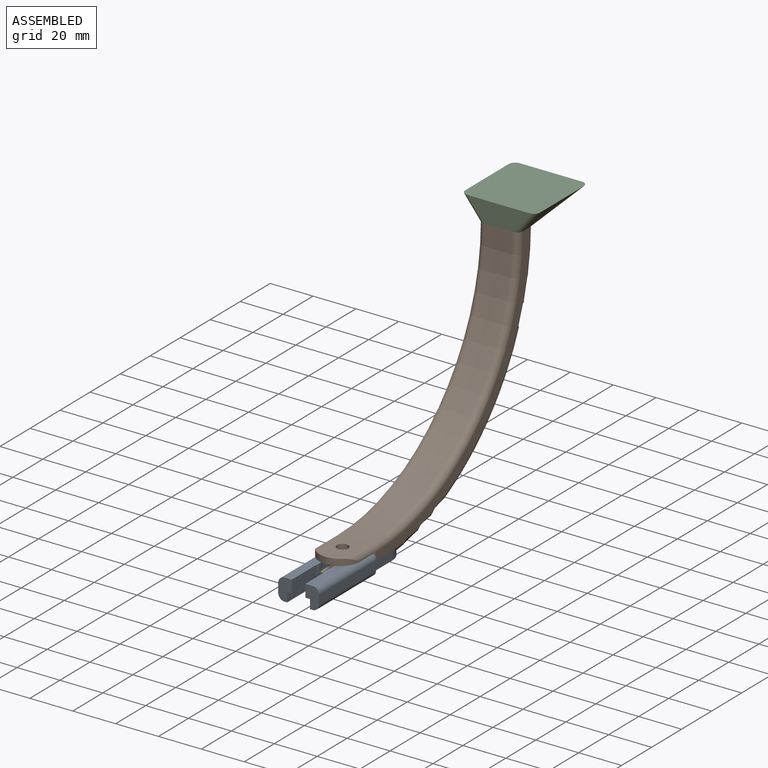
[diagram: assembled view]
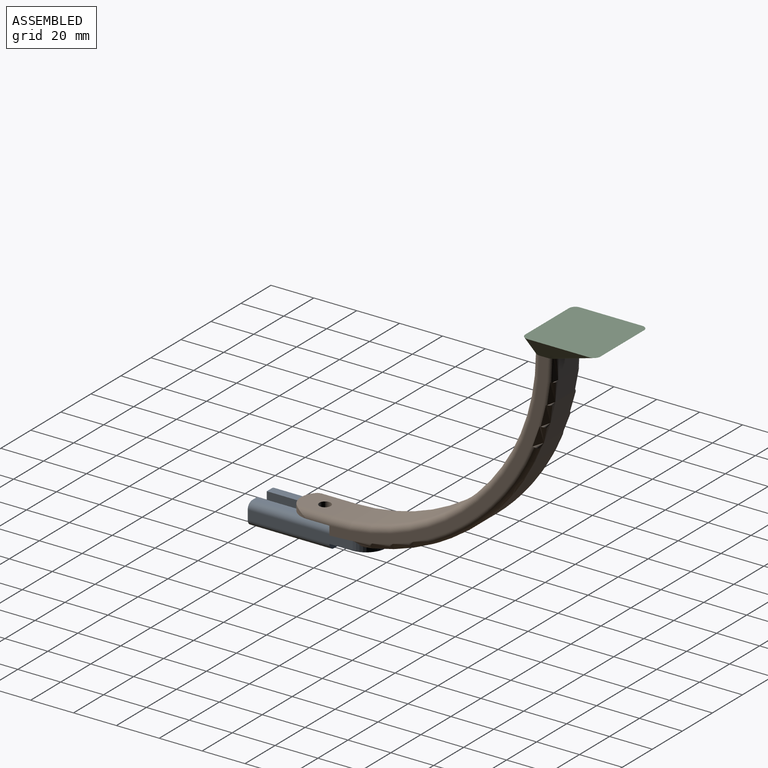
[diagram: assembled view, second angle]
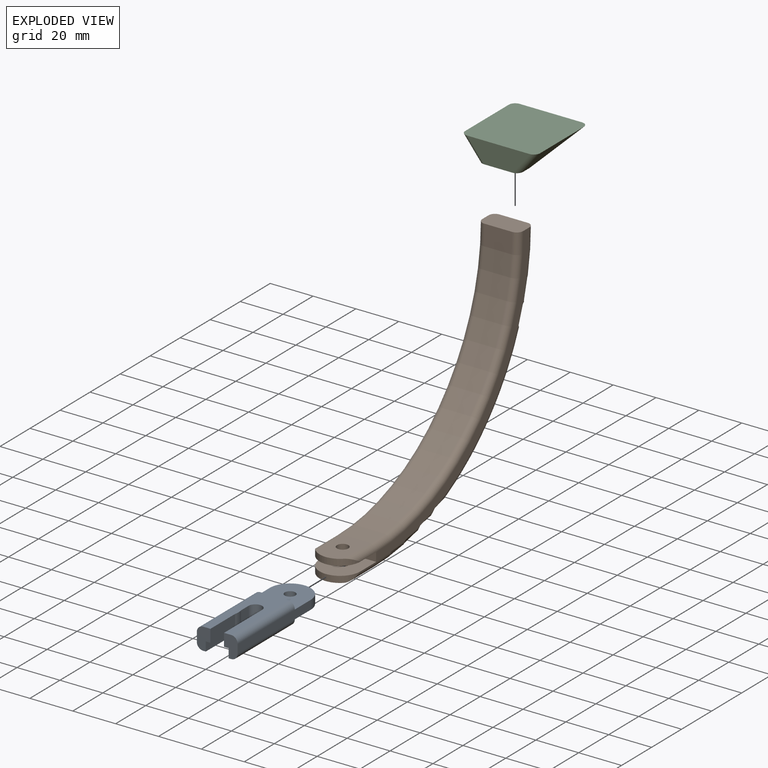
[diagram: exploded view]
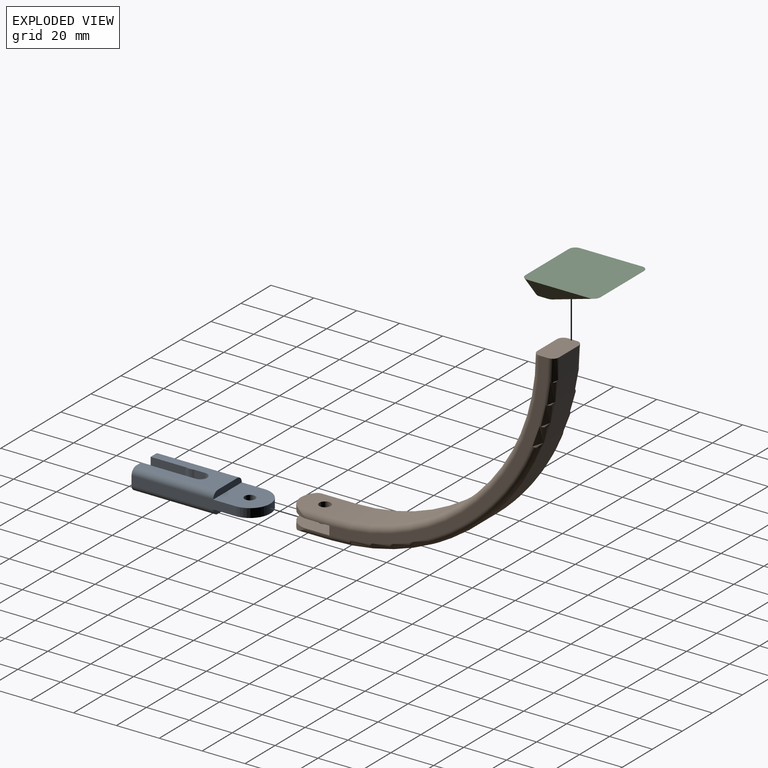
[diagram: exploded view, second angle]
ASSEMBLY  parts=3 mates=2
PART A: 27 faces, bbox 19.1x58.1x10.2 mm
  f0: plane 49.03x4.16mm, normal (-1,0,0), area 204mm2, adj f1,f7,f9,f10,f24,f25
  f1: plane 20x19.05mm, normal (0,0,-1), area 322.5mm2, adj f0,f2,f14,f25,f26
  f2: plane 49.03x4.16mm, normal (1,0,0), area 204mm2, adj f1,f8,f12,f13,f24,f25
  f3: plane 19.05x3mm, normal (0,1,0), area 53.3mm2, adj f6,f8,f9,f24
  f4: plane 16.4x5.89mm, normal (1,0,0), area 96.6mm2, adj f6,f7,f19,f23
  f5: plane 4.27x2.16mm, normal (0,-1,0), area 9.2mm2, adj f11,f19,f20,f22
  f6: plane 38.1x13.05mm, normal (0,0,1), area 320.8mm2, adj f3,f4,f7,f8,f9,f13,f17,f18
  f7: plane 10.16x6.35mm, normal (0,-1,0), area 51.4mm2, adj f0,f4,f6,f9,f10,f11,f19,f20
  f8: cylinder r=3mm len=38.1mm, axis (0,1,0), area 179.5mm2, adj f2,f3,f6,f13
  f9: cylinder r=3mm len=38.1mm, axis (0,1,0), area 179.5mm2, adj f0,f3,f6,f7
  f10: cylinder r=3mm len=38.1mm, axis (0,1,0), area 179.5mm2, adj f0,f7,f11,f14
  f11: plane 38.1x13.05mm, normal (0,0,-1), area 210.4mm2, adj f5,f7,f10,f12,f13,f14,f15,f20
  f12: cylinder r=3mm len=38.1mm, axis (0,1,0), area 179.5mm2, adj f2,f11,f13,f14
  f13: plane 10.16x6.35mm, normal (0,-1,0), area 51.4mm2, adj f2,f6,f8,f11,f12,f15,f16,f17
  f14: plane 19.05x3mm, normal (0,1,0), area 53.3mm2, adj f1,f10,f11,f12
  f15: plane 25.4x4.27mm, normal (-1,0,0), area 108.4mm2, adj f11,f13,f16,f21
  f16: plane 25.4x2.16mm, normal (0,0,-1), area 54.8mm2, adj f13,f15,f17,f21
  f17: plane 25.4x5.89mm, normal (-1,0,0), area 149.7mm2, adj f6,f13,f16,f22
  f18: plane 5.89x5mm, normal (1,0,0), area 29.5mm2, adj f6,f19,f22,f23
  f19: plane 25.4x2.41mm, normal (0,0,-1), area 55.5mm2, adj f4,f5,f7,f18,f20,f23
  f20: plane 25.4x4.27mm, normal (1,0,0), area 108.4mm2, adj f5,f7,f11,f19
  f21: plane 4.27x2.16mm, normal (0,-1,0), area 9.2mm2, adj f11,f15,f16,f22
  f22: cylinder r=3.17mm len=10.16mm, axis (0,0,1), area 101.3mm2, adj f5,f6,f11,f17,f18,f21
  f23: cylinder r=8mm len=5.89mm, axis (0,0,1), area 23.8mm2, adj f4,f6,f18,f19
  f24: plane 20x19.05mm, normal (0,0,1), area 322.5mm2, adj f0,f2,f3,f25,f26
  f25: cylinder r=9.54mm len=19.05mm, axis (0,0,1), area 120.8mm2, adj f0,f1,f2,f24
  f26: cylinder r=2.5mm len=5mm, axis (0,0,1), area 65.3mm2, adj f1,f24
PART B: 22 faces, bbox 19.1x133.7x113.7 mm
  f0: plane 20x19.05mm, normal (0,0,-1), area 320mm2, adj f2,f3,f7,f19,f21
  f1: plane 20x13.05mm, normal (0,0,1), area 228.3mm2, adj f2,f3,f14,f19,f21
  f2: cylinder r=3mm len=17.42mm, axis (0,1,0), area 67.5mm2, adj f0,f1,f15,f19
  f3: cylinder r=3mm len=17.42mm, axis (0,1,0), area 67.5mm2, adj f0,f1,f13,f19
  f4: plane 20x13.05mm, normal (0,0,-1), area 228.3mm2, adj f5,f6,f10,f18,f20
  f5: cylinder r=3mm len=17.42mm, axis (0,1,0), area 67.5mm2, adj f4,f11,f17,f18
  f6: cylinder r=3mm len=17.42mm, axis (0,1,0), area 67.5mm2, adj f4,f9,f17,f18
  f7: plane 19.05x4.16mm, normal (0,-1,0), area 79.2mm2, adj f0,f12,f16,f17
  f8: plane 19.05x10.16mm, normal (0,0,1), area 185.8mm2, adj f9,f10,f11,f12,f13,f14,f15,f16
  f9: torus R=102.08mm, axis (1,0,0), area 769.8mm2, adj f6,f8,f10,f16
  f10: cylinder r=105.08mm len=105.08mm, axis (1,0,0), area 2154mm2, adj f4,f8,f9,f11
  f11: torus R=102.08mm, axis (1,0,0), area 769.8mm2, adj f5,f8,f10,f12
  f12: plane 102.08x102.08mm, normal (-1,0,0), area 653.5mm2, adj f7,f8,f11,f13
  f13: torus R=97.92mm, axis (1,0,0), area 710.7mm2, adj f3,f8,f12,f14
  f14: cylinder r=94.92mm len=94.92mm, axis (1,0,0), area 1945.8mm2, adj f1,f8,f13,f15
  f15: torus R=97.92mm, axis (1,0,0), area 710.7mm2, adj f2,f8,f14,f16
  f16: plane 102.08x102.08mm, normal (1,0,0), area 653.5mm2, adj f7,f8,f9,f15
  f17: plane 20x19.05mm, normal (0,0,1), area 320mm2, adj f5,f6,f7,f18,f20
  f18: cylinder r=9.54mm len=19.05mm, axis (0,0,1), area 71.6mm2, adj f4,f5,f6,f17
  f19: cylinder r=9.54mm len=19.05mm, axis (0,0,-1), area 71.6mm2, adj f0,f1,f2,f3
  f20: cylinder r=2.65mm len=5.31mm, axis (0,0,-1), area 50mm2, adj f4,f17
  f21: cylinder r=2.65mm len=5.31mm, axis (0,0,-1), area 50mm2, adj f0,f1
PART C: 10 faces, bbox 35x35x10 mm
  f0: plane 19.05x10.16mm, normal (0,0,-1), area 185.8mm2, adj f2,f3,f4,f5,f6,f7,f8,f9
  f1: plane 35x35mm, normal (0,0,1), area 1217.3mm2, adj f2,f3,f4,f5,f6,f7,f8,f9
  f2: bspline ~27.84x10.98mm, area 109.8mm2, adj f0,f1,f3,f9
  f3: plane 29x10mm, normal (-0.78,0,-0.62), area 212.1mm2, adj f0,f1,f2,f4
  f4: bspline ~32.3x32.24mm, area 53.9mm2, adj f0,f1,f3,f5
  f5: plane 29x10mm, normal (0,-1,0), area 210.2mm2, adj f0,f1,f4,f6
  f6: bspline ~32.3x32.24mm, area 53.9mm2, adj f0,f1,f5,f7
  f7: plane 29x10mm, normal (0.78,0,-0.62), area 212.1mm2, adj f0,f1,f6,f8
  f8: bspline ~32.3x32.24mm, area 109.8mm2, adj f0,f1,f7,f9
  f9: plane 29x24.84mm, normal (0,0.37,-0.93), area 563mm2, adj f0,f1,f2,f8
PLACE A t=(0,0,-3.52)mm
PLACE B at identity
PLACE C t=(0,100,100)mm
MATE fastened C.f0 <-> B.f8  axis (0,0,-1) through (0,100,100)mm
MATE fastened A.f3 <-> B.f7  axis (0,1,0) through (0,0,0)mm
